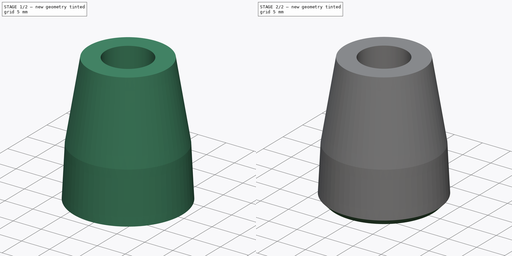
[diagram: build sequence overview — one tinted view per stage of 2, left to right]
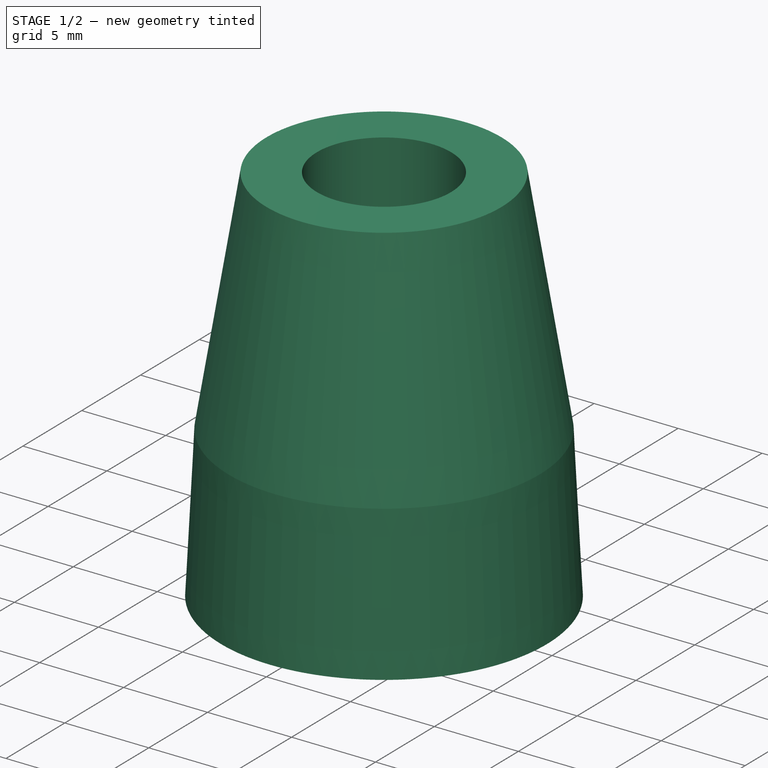
[diagram: stage 1 of 2 — iso view after this stage's code; geometry added in this stage tinted green]
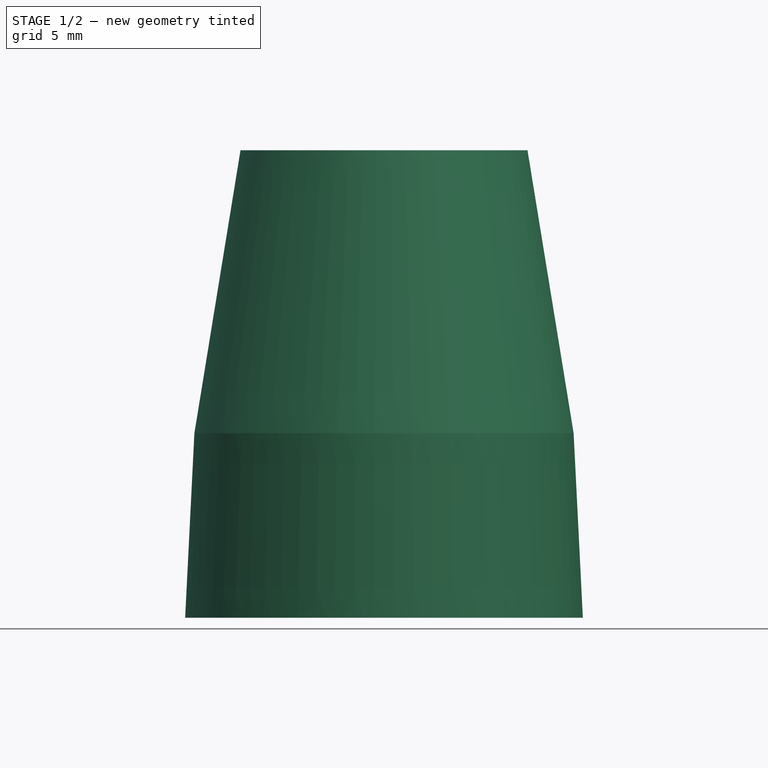
[diagram: stage 1 of 2 — front view after this stage's code; geometry added in this stage tinted green]
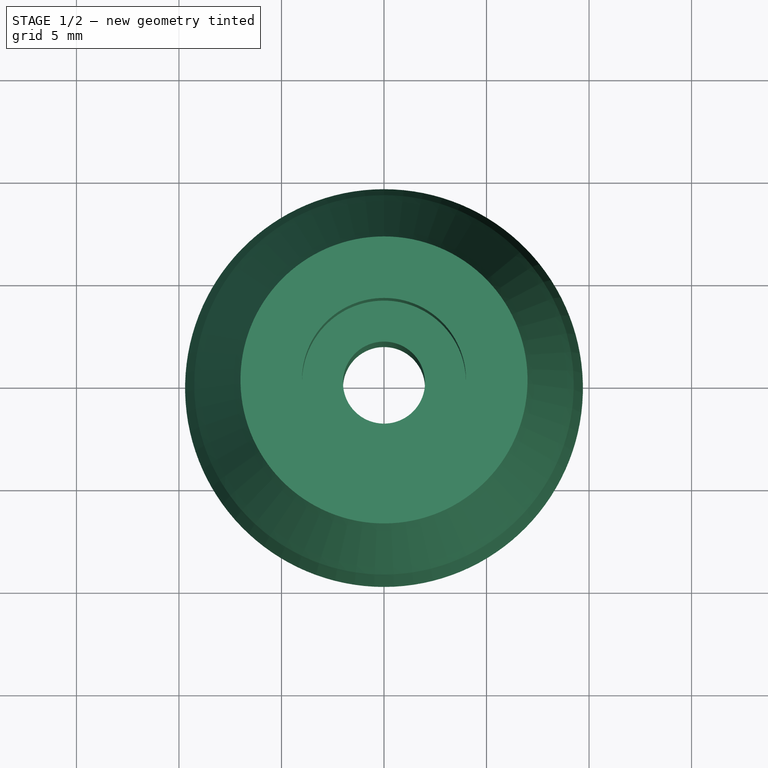
[diagram: stage 1 of 2 — top view after this stage's code; geometry added in this stage tinted green]
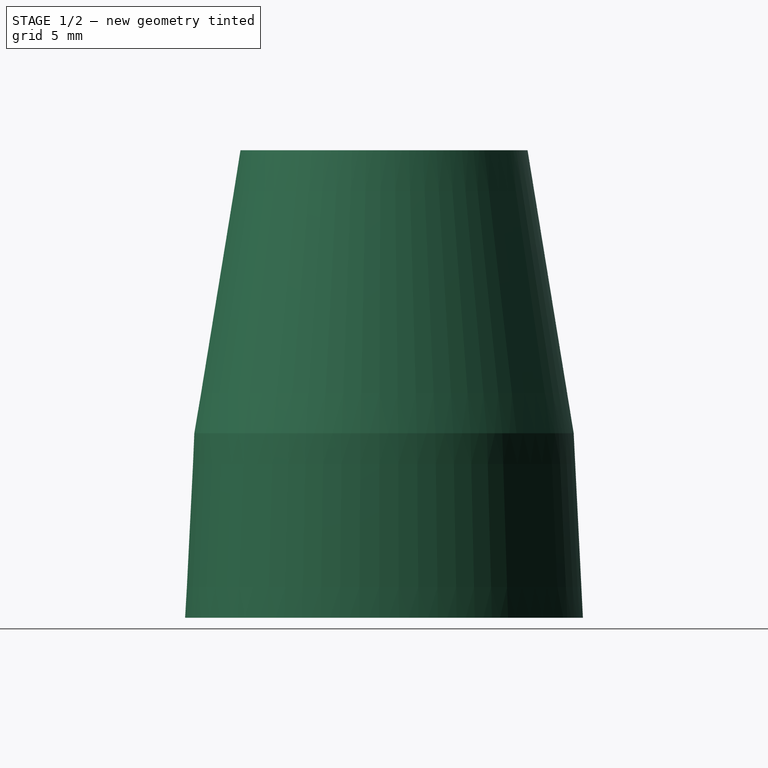
[diagram: stage 1 of 2 — right view after this stage's code; geometry added in this stage tinted green]
FCSTD DOCUMENT  (FreeCAD 0.18.3R)
Label: wheel_roller_screw
License: All rights reserved
LicenseURL: http://en.wikipedia.org/wiki/All_rights_reserved
objects: Sketcher::SketchObject×2, PartDesign::Revolution×1, PartDesign::Hole×1, PartDesign::Chamfer×1, PartDesign::Body×1
note: 8 computed .brp shape members not serialized (recipe doc carries the construction recipe); baked Part::Feature solids carry a one-line shape summary decoded from their .brp

FEATURE [Sketcher::SketchObject] Sketch
  MapMode = 5
  Placement = pos=(0,0,0) rot=(0.57735,0.57735,0.57735;2.0944rad)
  Support = -> [YZ_Plane]
  sketch-geometry (6):
    g0: LineSegment [constr] StartX=0 StartY=0 StartZ=0 EndX=2 EndY=0 EndZ=0
    g1: LineSegment StartX=2 StartY=0 StartZ=0 EndX=9.7 EndY=0 EndZ=0
    g2: LineSegment StartX=2 StartY=0 StartZ=0 EndX=2 EndY=22.8 EndZ=0
    g3: LineSegment StartX=9.7 StartY=0 StartZ=0 EndX=9.25 EndY=9 EndZ=0
    g4: LineSegment StartX=2 StartY=22.8 StartZ=0 EndX=7 EndY=22.8 EndZ=0
    g5: LineSegment StartX=7 StartY=22.8 StartZ=0 EndX=9.25 EndY=9 EndZ=0
  constraints (17):
    c: Coincident(g0,g-1)
    c: Parallel(g0,g-1)
    c: DistanceX(g0,g0) = 2
    c: Coincident(g1,g0)
    c: Parallel(g-1,g1)
    c: DistanceX(g1,g1) = 7.7
    c: Vertical(g2)
    c: DistanceY(g2,g2) = 22.8
    c: Coincident(g2,g1)
    c: Coincident(g3,g1)
    c: Distance(g3,g1) = 9
    c: Distance(g3,g2) = 7.25
    c: Coincident(g4,g2)
    c: Horizontal(g4)
    c: Coincident(g5,g4)
    c: DistanceX(g4,g4) = 5
    c: Coincident(g5,g3)
FEATURE [PartDesign::Revolution] Revolution
  Angle = 360
  Axis = (-2e-16,3e-16,1)
  Base = (0,0,0)
  Placement = pos=(0,0,0) rot=(0.57735,0.57735,0.57735;2.0944rad)
  Profile = -> Sketch
  ReferenceAxis = -> Sketch [V_Axis]
  Reversed = true
FEATURE [Sketcher::SketchObject] Sketch001
  MapMode = 5
  Placement = pos=(-1e-14,6.4e-15,22.8) rot=(0,0,-1;1.5708rad)
  Support = -> [Revolution]
  sketch-geometry (1):
    g0: Circle CenterX=0 CenterY=0 CenterZ=0 NormalX=0 NormalY=0 NormalZ=1 AngleXU=0 Radius=4
  constraints (2):
    c: Coincident(g0,g-1)
    c: Diameter(g0) = 8
FEATURE [PartDesign::Hole] Hole
  BaseFeature = -> Revolution
  Depth = 7.5
  DepthType = 0
  Diameter = 8
  DrillPoint = 0
  DrillPointAngle = 118
  HoleCutCountersinkAngle = 90
  HoleCutDepth = 0
  HoleCutDiameter = 0
  HoleCutType = 0
  ModelActualThread = false
  Placement = pos=(0,0,0) rot=(0.57735,0.57735,0.57735;2.0944rad)
  Profile = -> Sketch001
  Tapered = false
  TaperedAngle = 90
  ThreadAngle = 0
  ThreadClass = 0
  ThreadCutOffInner = 0
  ThreadCutOffOuter = 0
  ThreadDirection = 0
  ThreadFit = 0
  ThreadPitch = 0
  ThreadSize = 0
  ThreadType = 0
  Threaded = false
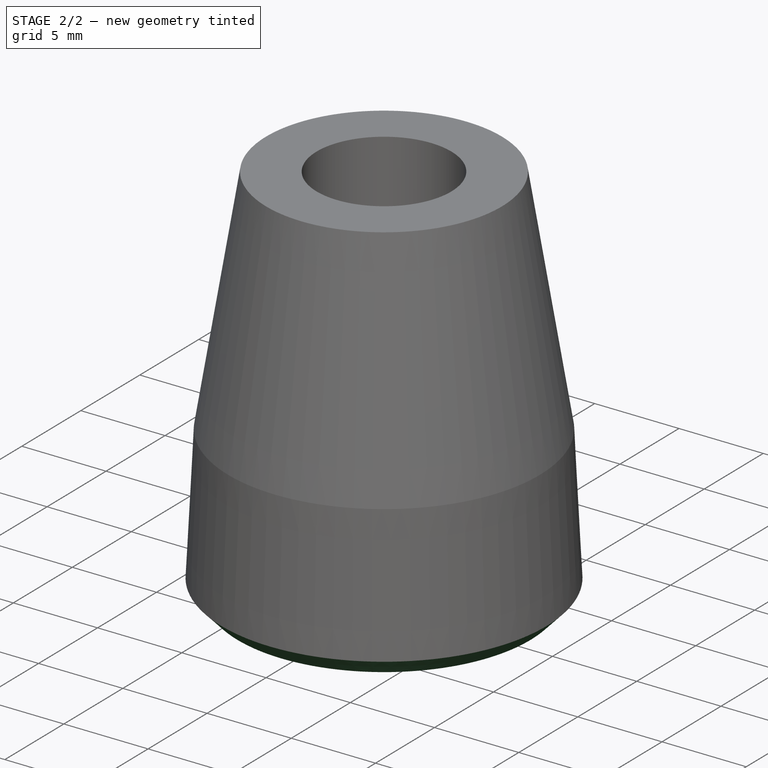
[diagram: stage 2 of 2 — iso view after this stage's code; geometry added in this stage tinted green]
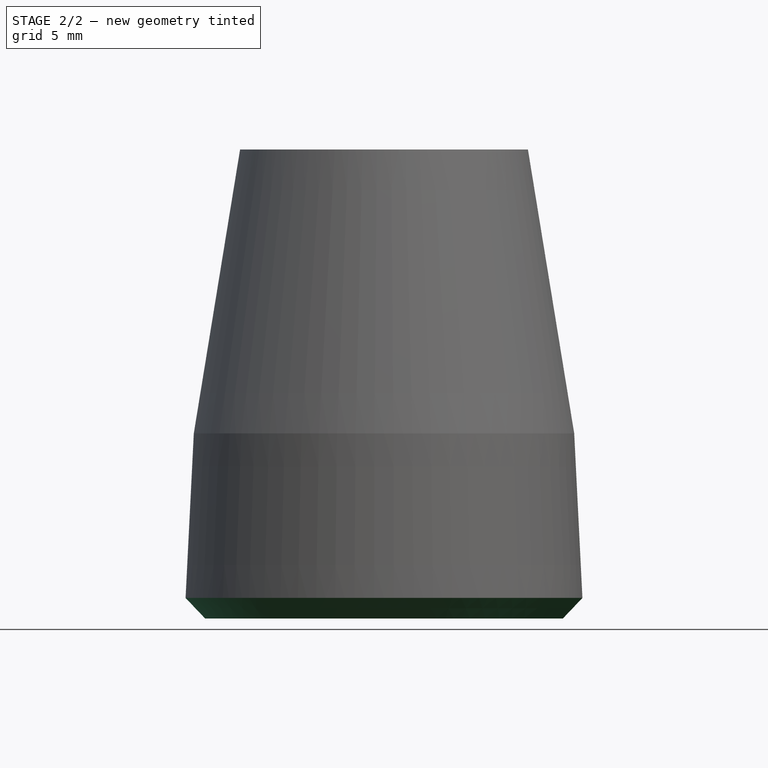
[diagram: stage 2 of 2 — front view after this stage's code; geometry added in this stage tinted green]
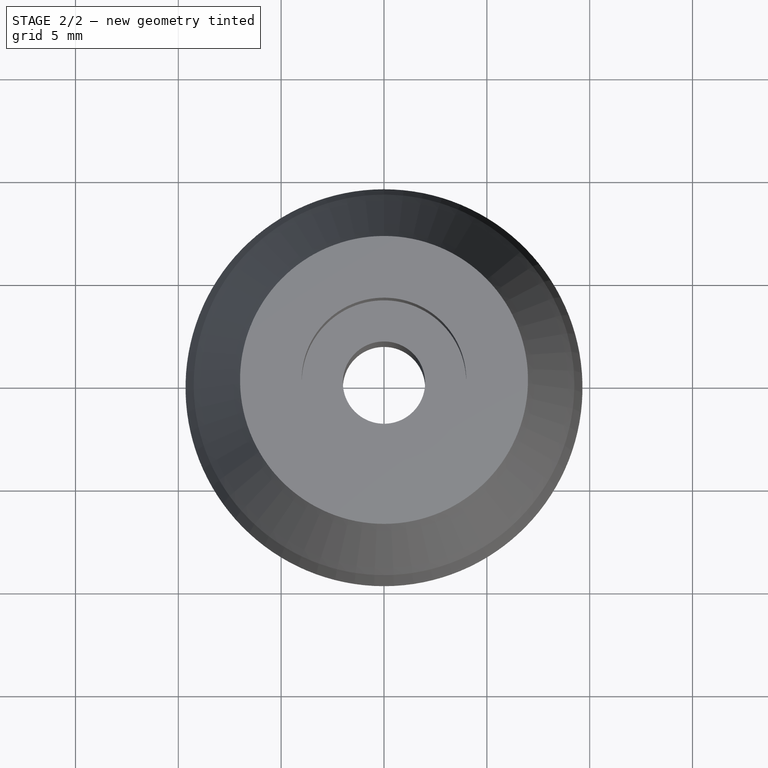
[diagram: stage 2 of 2 — top view after this stage's code; geometry added in this stage tinted green]
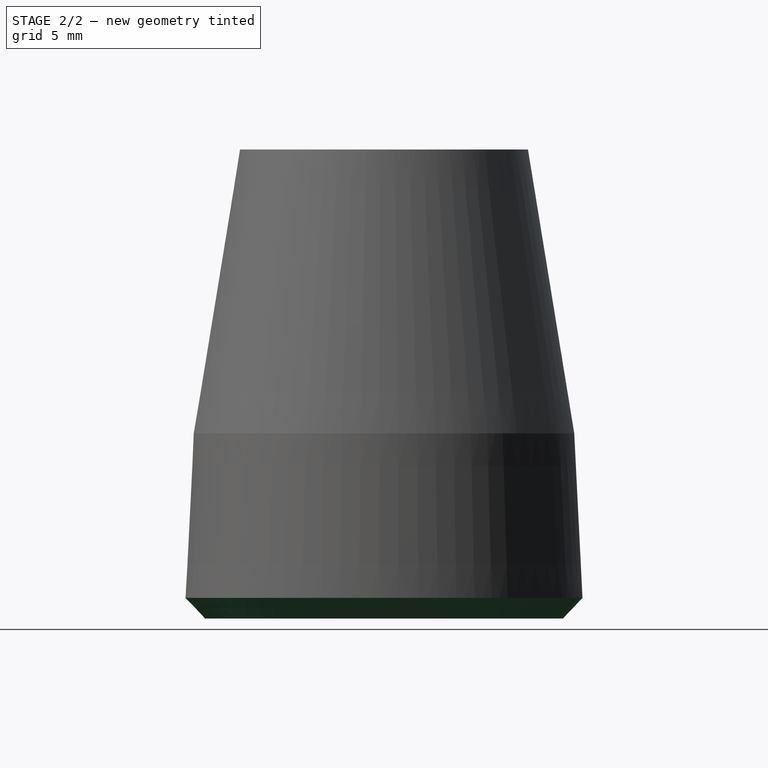
[diagram: stage 2 of 2 — right view after this stage's code; geometry added in this stage tinted green]
FEATURE [PartDesign::Chamfer] Chamfer
  Base = -> Hole [Edge2]
  BaseFeature = -> Hole
  Placement = pos=(0,0,0) rot=(0.57735,0.57735,0.57735;2.0944rad)
  Size = 1
FEATURE [PartDesign::Body] Body
  Group = -> [Sketch,Revolution,Sketch001,Hole,Chamfer]
  Origin = -> Origin
  Tip = -> Chamfer
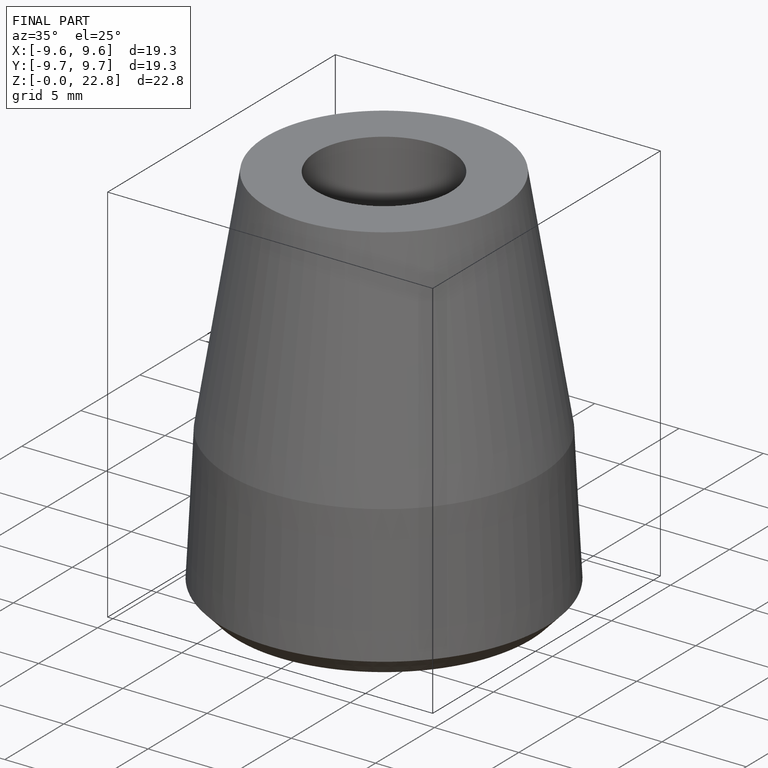
[diagram: finished part — iso view with bounding-box wireframe]
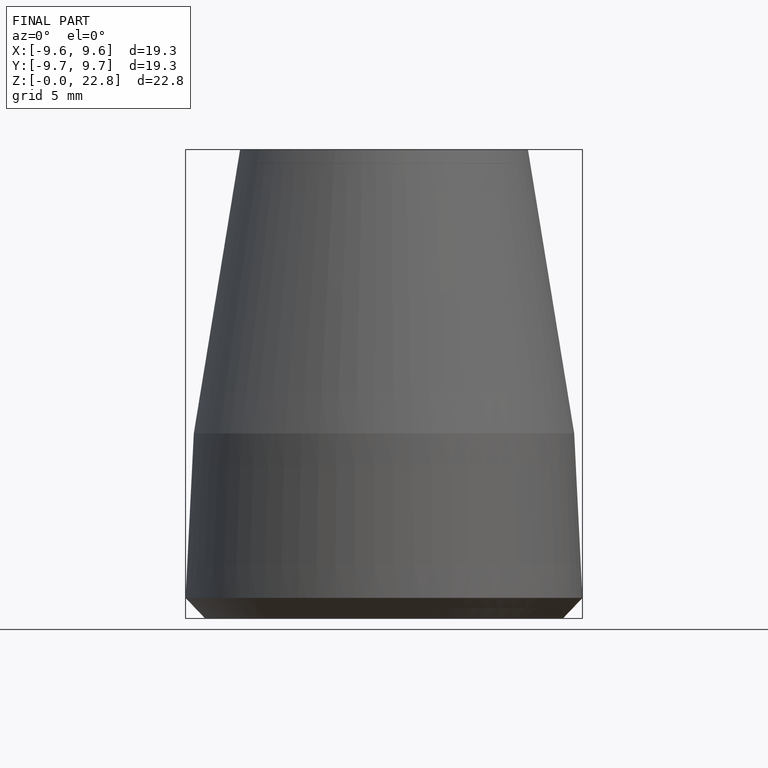
[diagram: finished part — front view with bounding-box wireframe]
